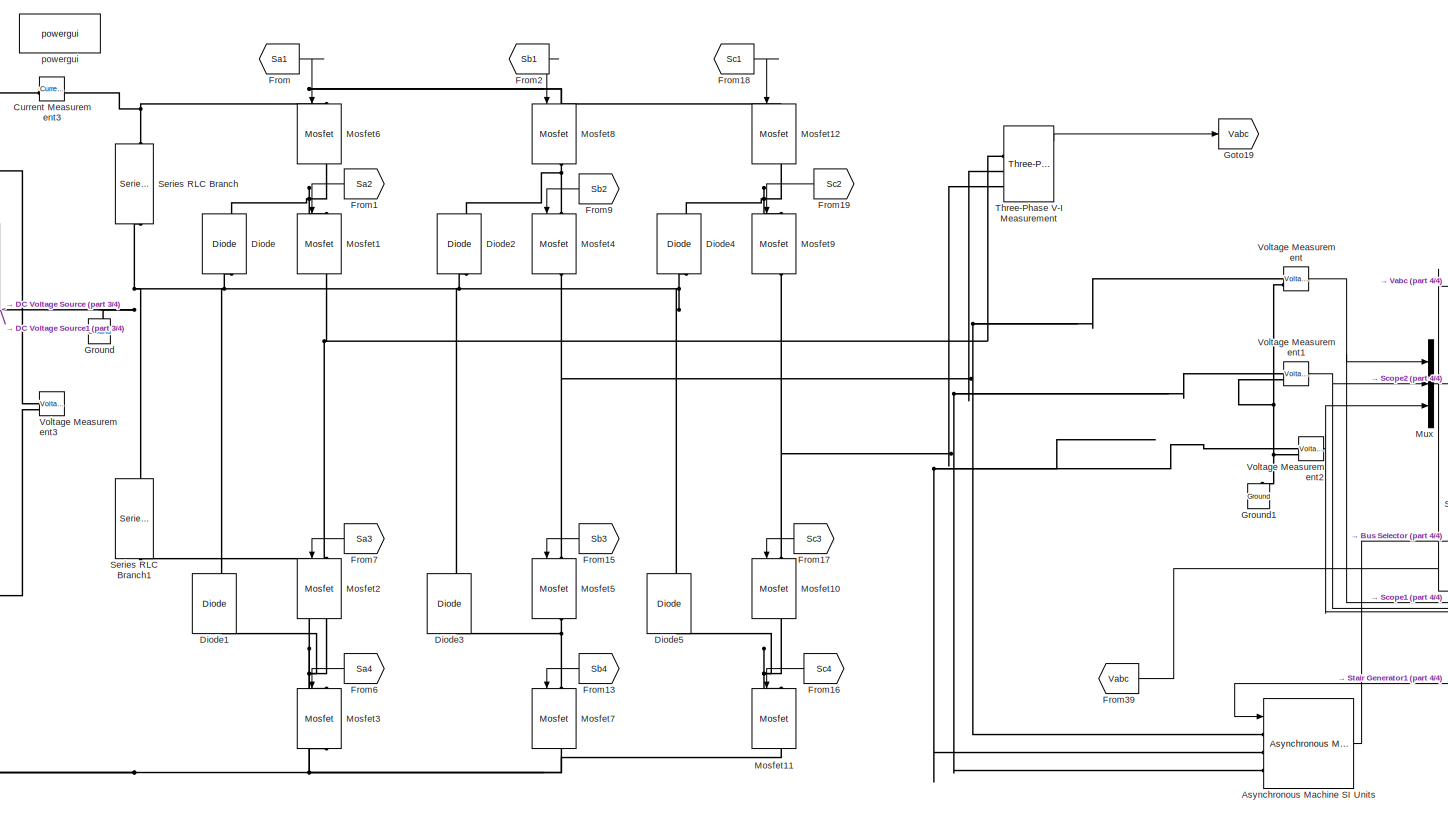
[diagram: root canvas - part 1/4, center side, full height]
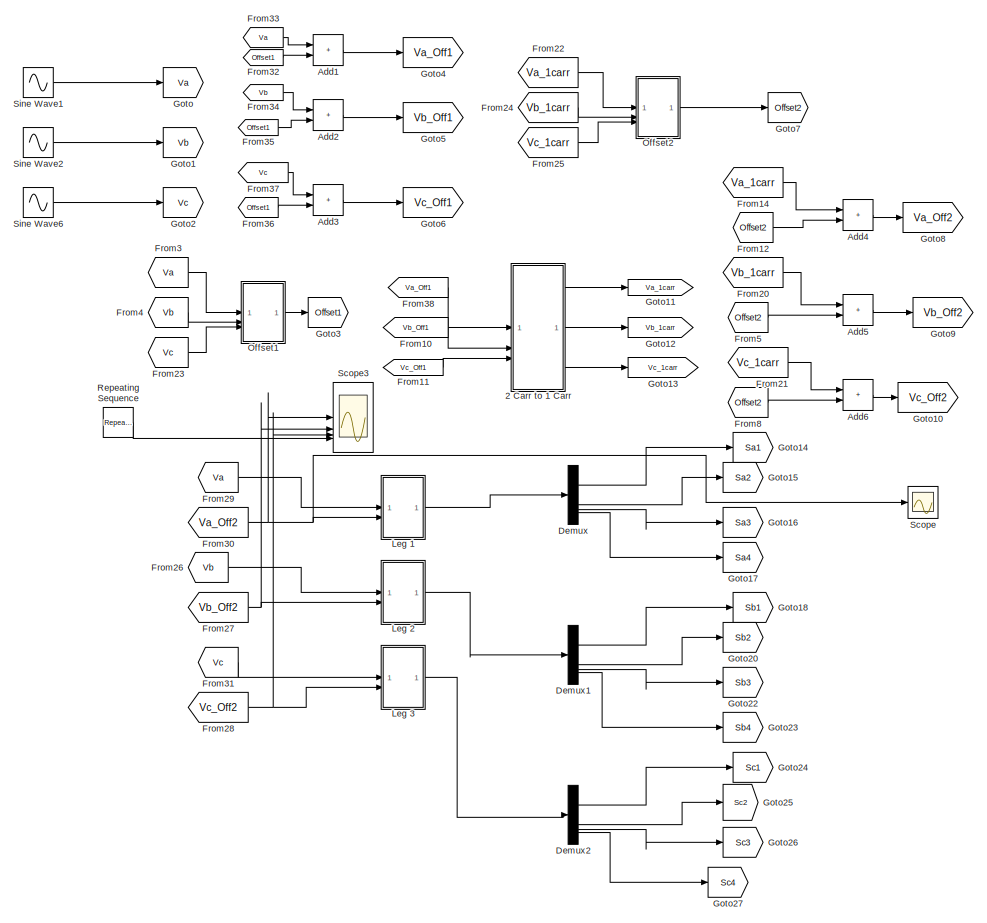
[diagram: root canvas - part 2/4, left side, full height]
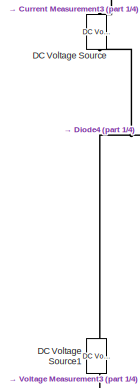
[diagram: root canvas - part 3/4, central region]
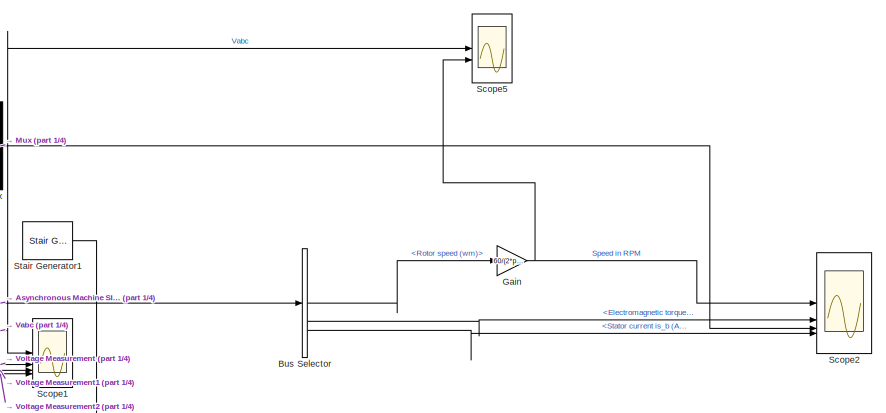
[diagram: root canvas - part 4/4, middle right region]
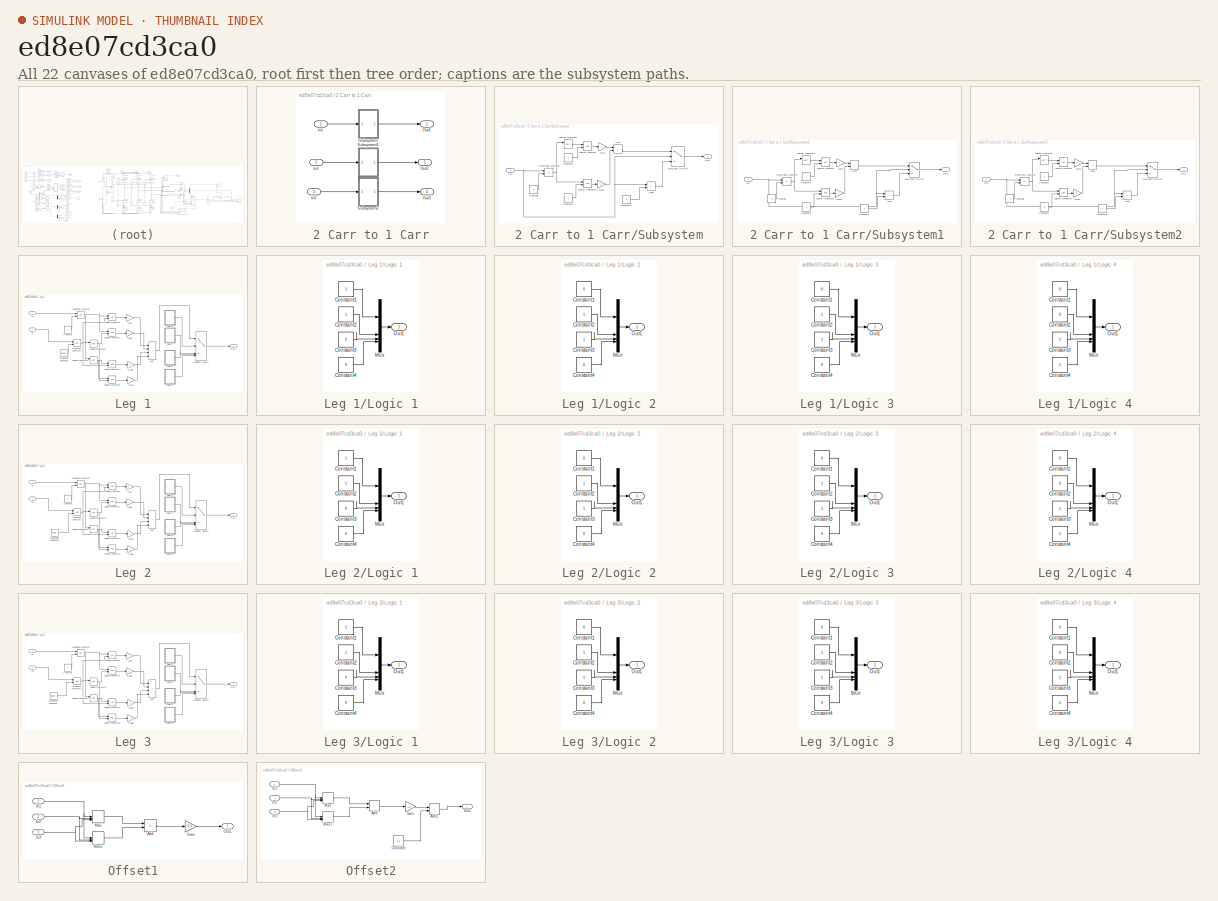
[diagram: thumbnail index - all 22 canvases of the model, root first then tree order]
MODEL slx_ed8e07cd3ca0
KIND model
CONFIG AbsTol = auto
CONFIG EnableMultiTasking = off
CONFIG FixedStep = auto
CONFIG MaxStep = 1e-5
CONFIG MinStep = auto
CONFIG RelTol = 1e-3
CONFIG SampleTimeConstraint = Unconstrained
CONFIG SolverName = VariableStepAuto
CONFIG StartTime = 0.0
CONFIG StopTime = 2
BLOCK [SubSystem] 2 Carr to 1 Carr
BLOCK [Inport] 2 Carr to 1 Carr/In1
BLOCK [Inport] 2 Carr to 1 Carr/In2
  Port = 2
BLOCK [Inport] 2 Carr to 1 Carr/In3
  Port = 3
BLOCK [Outport] 2 Carr to 1 Carr/Out1
BLOCK [Outport] 2 Carr to 1 Carr/Out2
  Port = 2
BLOCK [Outport] 2 Carr to 1 Carr/Out3
  Port = 3
BLOCK [SubSystem] 2 Carr to 1 Carr/Subsystem
BLOCK [Sum] 2 Carr to 1 Carr/Subsystem/Add4
  IconShape = rectangular
BLOCK [Sum] 2 Carr to 1 Carr/Subsystem/Add5
  IconShape = rectangular
BLOCK [Constant] 2 Carr to 1 Carr/Subsystem/Constant
  Value = 0
BLOCK [Constant] 2 Carr to 1 Carr/Subsystem/Constant1
BLOCK [Constant] 2 Carr to 1 Carr/Subsystem/Constant2
BLOCK [Constant] 2 Carr to 1 Carr/Subsystem/Constant3
BLOCK [Gain] 2 Carr to 1 Carr/Subsystem/Gain
BLOCK [Gain] 2 Carr to 1 Carr/Subsystem/Gain1
  Gain = 2
BLOCK [Inport] 2 Carr to 1 Carr/Subsystem/In1
BLOCK [Logic] 2 Carr to 1 Carr/Subsystem/Logical Operator
  AllPortsSameDT = off
  OutDataTypeStr = boolean
BLOCK [Logic] 2 Carr to 1 Carr/Subsystem/Logical Operator1
  AllPortsSameDT = off
  Operator = NOT
  OutDataTypeStr = boolean
BLOCK [Logic] 2 Carr to 1 Carr/Subsystem/Logical Operator2
  AllPortsSameDT = off
  OutDataTypeStr = boolean
BLOCK [MultiPortSwitch] 2 Carr to 1 Carr/Subsystem/Multiport Switch
  InputSameDT = off
  Inputs = 2
  SaturateOnIntegerOverflow = off
BLOCK [Outport] 2 Carr to 1 Carr/Subsystem/Out1
BLOCK [RelationalOperator] 2 Carr to 1 Carr/Subsystem/Relational Operator
  InputSameDT = off
  Operator = <=
  OutDataTypeStr = boolean
  RndMeth = Simplest
BLOCK [SubSystem] 2 Carr to 1 Carr/Subsystem1
BLOCK [Sum] 2 Carr to 1 Carr/Subsystem1/Add4
  IconShape = rectangular
BLOCK [Sum] 2 Carr to 1 Carr/Subsystem1/Add5
  IconShape = rectangular
BLOCK [Constant] 2 Carr to 1 Carr/Subsystem1/Constant
  Value = 0
BLOCK [Constant] 2 Carr to 1 Carr/Subsystem1/Constant1
BLOCK [Constant] 2 Carr to 1 Carr/Subsystem1/Constant2
BLOCK [Constant] 2 Carr to 1 Carr/Subsystem1/Constant3
BLOCK [Gain] 2 Carr to 1 Carr/Subsystem1/Gain
BLOCK [Gain] 2 Carr to 1 Carr/Subsystem1/Gain1
  Gain = 2
BLOCK [Inport] 2 Carr to 1 Carr/Subsystem1/In1
BLOCK [Logic] 2 Carr to 1 Carr/Subsystem1/Logical Operator
  AllPortsSameDT = off
  OutDataTypeStr = boolean
BLOCK [Logic] 2 Carr to 1 Carr/Subsystem1/Logical Operator1
  AllPortsSameDT = off
  Operator = NOT
  OutDataTypeStr = boolean
BLOCK [Logic] 2 Carr to 1 Carr/Subsystem1/Logical Operator2
  AllPortsSameDT = off
  OutDataTypeStr = boolean
BLOCK [MultiPortSwitch] 2 Carr to 1 Carr/Subsystem1/Multiport Switch
  InputSameDT = off
  Inputs = 2
  SaturateOnIntegerOverflow = off
BLOCK [Outport] 2 Carr to 1 Carr/Subsystem1/Out1
BLOCK [RelationalOperator] 2 Carr to 1 Carr/Subsystem1/Relational Operator
  InputSameDT = off
  Operator = <=
  OutDataTypeStr = boolean
  RndMeth = Simplest
BLOCK [SubSystem] 2 Carr to 1 Carr/Subsystem2
BLOCK [Sum] 2 Carr to 1 Carr/Subsystem2/Add4
  IconShape = rectangular
BLOCK [Sum] 2 Carr to 1 Carr/Subsystem2/Add5
  IconShape = rectangular
BLOCK [Constant] 2 Carr to 1 Carr/Subsystem2/Constant
  Value = 0
BLOCK [Constant] 2 Carr to 1 Carr/Subsystem2/Constant1
BLOCK [Constant] 2 Carr to 1 Carr/Subsystem2/Constant2
BLOCK [Constant] 2 Carr to 1 Carr/Subsystem2/Constant3
BLOCK [Gain] 2 Carr to 1 Carr/Subsystem2/Gain
BLOCK [Gain] 2 Carr to 1 Carr/Subsystem2/Gain1
  Gain = 2
BLOCK [Inport] 2 Carr to 1 Carr/Subsystem2/In1
BLOCK [Logic] 2 Carr to 1 Carr/Subsystem2/Logical Operator
  AllPortsSameDT = off
  OutDataTypeStr = boolean
BLOCK [Logic] 2 Carr to 1 Carr/Subsystem2/Logical Operator1
  AllPortsSameDT = off
  Operator = NOT
  OutDataTypeStr = boolean
BLOCK [Logic] 2 Carr to 1 Carr/Subsystem2/Logical Operator2
  AllPortsSameDT = off
  OutDataTypeStr = boolean
BLOCK [MultiPortSwitch] 2 Carr to 1 Carr/Subsystem2/Multiport Switch
  InputSameDT = off
  Inputs = 2
  SaturateOnIntegerOverflow = off
BLOCK [Outport] 2 Carr to 1 Carr/Subsystem2/Out1
BLOCK [RelationalOperator] 2 Carr to 1 Carr/Subsystem2/Relational Operator
  InputSameDT = off
  Operator = <=
  OutDataTypeStr = boolean
  RndMeth = Simplest
BLOCK [Sum] Add1
  IconShape = rectangular
BLOCK [Sum] Add2
  IconShape = rectangular
BLOCK [Sum] Add3
  IconShape = rectangular
BLOCK [Sum] Add4
  IconShape = rectangular
BLOCK [Sum] Add5
  IconShape = rectangular
BLOCK [Sum] Add6
  IconShape = rectangular
BLOCK [Reference] Asynchronous Machine SI Units  REF=spsAsynchronousMachineSIUnitsLib/Asynchronous Machine
SI Units
  SourceBlock = spsAsynchronousMachineSIUnitsLib/Asynchronous Machine\nSI Units
  SourceType = Asynchronous Machine
BLOCK [BusSelector] Bus Selector
  OutputSignals = Mechanical.Rotor speed (wm),Mechanical.Electromagnetic torque Te (N*m),Stator measurements.Stator current is_b (A),Stator measurements.Stator flux phis_d (V s),Stator measurements.Stator flux phis_q (V s),Stator measurements.Stator current is_a (A),Stator measurements.Stator current is_b (A),Stator measurements.Stator current is_c (A)
BLOCK [Reference] Current Measurement3  REF=spsCurrentMeasurementLib/Current Measurement
  SourceBlock = spsCurrentMeasurementLib/Current Measurement
  SourceType = Current Measurement
  UserDataPersistent = on
BLOCK [Reference] DC Voltage Source  REF=spsDCVoltageSourceLib/DC Voltage Source
  SourceBlock = spsDCVoltageSourceLib/DC Voltage Source
  SourceType = DC Voltage Source
BLOCK [Reference] DC Voltage Source1  REF=spsDCVoltageSourceLib/DC Voltage Source
  SourceBlock = spsDCVoltageSourceLib/DC Voltage Source
  SourceType = DC Voltage Source
BLOCK [Demux] Demux
BLOCK [Demux] Demux1
BLOCK [Demux] Demux2
BLOCK [Reference] Diode  REF=spsDiodeLib/Diode
  NameLocation = right
  SourceBlock = spsDiodeLib/Diode
  SourceType = Diode
BLOCK [Reference] Diode1  REF=spsDiodeLib/Diode
  NameLocation = right
  SourceBlock = spsDiodeLib/Diode
  SourceType = Diode
BLOCK [Reference] Diode2  REF=spsDiodeLib/Diode
  NameLocation = right
  SourceBlock = spsDiodeLib/Diode
  SourceType = Diode
BLOCK [Reference] Diode3  REF=spsDiodeLib/Diode
  NameLocation = right
  SourceBlock = spsDiodeLib/Diode
  SourceType = Diode
BLOCK [Reference] Diode4  REF=spsDiodeLib/Diode
  NameLocation = right
  SourceBlock = spsDiodeLib/Diode
  SourceType = Diode
BLOCK [Reference] Diode5  REF=spsDiodeLib/Diode
  NameLocation = right
  SourceBlock = spsDiodeLib/Diode
  SourceType = Diode
BLOCK [From] From
  GotoTag = Sa1
BLOCK [From] From1
  GotoTag = Sa2
  NameLocation = top
BLOCK [From] From10
  GotoTag = Vb_Off1
BLOCK [From] From11
  GotoTag = Vc_Off1
BLOCK [From] From12
  GotoTag = Offset2
BLOCK [From] From13
  GotoTag = Sb4
  NameLocation = top
BLOCK [From] From14
  GotoTag = Va_1carr
BLOCK [From] From15
  GotoTag = Sb3
  NameLocation = top
BLOCK [From] From16
  GotoTag = Sc4
  NameLocation = top
BLOCK [From] From17
  GotoTag = Sc3
  NameLocation = top
BLOCK [From] From18
  GotoTag = Sc1
BLOCK [From] From19
  GotoTag = Sc2
  NameLocation = top
BLOCK [From] From2
  GotoTag = Sb1
BLOCK [From] From20
  GotoTag = Vb_1carr
BLOCK [From] From21
  GotoTag = Vc_1carr
BLOCK [From] From22
  GotoTag = Va_1carr
BLOCK [From] From23
  GotoTag = Vc
BLOCK [From] From24
  GotoTag = Vb_1carr
BLOCK [From] From25
  GotoTag = Vc_1carr
BLOCK [From] From26
  GotoTag = Vb
BLOCK [From] From27
  GotoTag = Vb_Off2
BLOCK [From] From28
  GotoTag = Vc_Off2
BLOCK [From] From29
  GotoTag = Va
BLOCK [From] From3
  GotoTag = Va
BLOCK [From] From30
  GotoTag = Va_Off2
BLOCK [From] From31
  GotoTag = Vc
BLOCK [From] From32
  GotoTag = Offset1
BLOCK [From] From33
  GotoTag = Va
BLOCK [From] From34
  GotoTag = Vb
BLOCK [From] From35
  GotoTag = Offset1
BLOCK [From] From36
  GotoTag = Offset1
BLOCK [From] From37
  GotoTag = Vc
BLOCK [From] From38
  GotoTag = Va_Off1
BLOCK [From] From39
  GotoTag = Vabc
BLOCK [From] From4
  GotoTag = Vb
BLOCK [From] From5
  GotoTag = Offset2
BLOCK [From] From6
  GotoTag = Sa4
  NameLocation = top
BLOCK [From] From7
  GotoTag = Sa3
  NameLocation = top
BLOCK [From] From8
  GotoTag = Offset2
BLOCK [From] From9
  GotoTag = Sb2
  NameLocation = top
BLOCK [Gain] Gain
  Gain = 60/(2*pi)
BLOCK [Goto] Goto
  GotoTag = Va
BLOCK [Goto] Goto1
  GotoTag = Vb
BLOCK [Goto] Goto10
  GotoTag = Vc_Off2
BLOCK [Goto] Goto11
  GotoTag = Va_1carr
BLOCK [Goto] Goto12
  GotoTag = Vb_1carr
BLOCK [Goto] Goto13
  GotoTag = Vc_1carr
BLOCK [Goto] Goto14
  GotoTag = Sa1
BLOCK [Goto] Goto15
  GotoTag = Sa2
  NameLocation = top
BLOCK [Goto] Goto16
  GotoTag = Sa3
  NameLocation = top
BLOCK [Goto] Goto17
  GotoTag = Sa4
  NameLocation = top
BLOCK [Goto] Goto18
  GotoTag = Sb1
BLOCK [Goto] Goto19
  GotoTag = Vabc
BLOCK [Goto] Goto2
  GotoTag = Vc
BLOCK [Goto] Goto20
  GotoTag = Sb2
  NameLocation = top
BLOCK [Goto] Goto22
  GotoTag = Sb3
  NameLocation = top
BLOCK [Goto] Goto23
  GotoTag = Sb4
  NameLocation = top
BLOCK [Goto] Goto24
  GotoTag = Sc1
BLOCK [Goto] Goto25
  GotoTag = Sc2
  NameLocation = top
BLOCK [Goto] Goto26
  GotoTag = Sc3
  NameLocation = top
BLOCK [Goto] Goto27
  GotoTag = Sc4
  NameLocation = top
BLOCK [Goto] Goto3
  GotoTag = Offset1
BLOCK [Goto] Goto4
  GotoTag = Va_Off1
BLOCK [Goto] Goto5
  GotoTag = Vb_Off1
BLOCK [Goto] Goto6
  GotoTag = Vc_Off1
BLOCK [Goto] Goto7
  GotoTag = Offset2
BLOCK [Goto] Goto8
  GotoTag = Va_Off2
BLOCK [Goto] Goto9
  GotoTag = Vb_Off2
BLOCK [Reference] Ground  REF=spsGroundLib/Ground
  NameLocation = right
  SourceBlock = spsGroundLib/Ground
  SourceType = Ground
BLOCK [Reference] Ground1  REF=spsGroundLib/Ground
  NameLocation = right
  SourceBlock = spsGroundLib/Ground
  SourceType = Ground
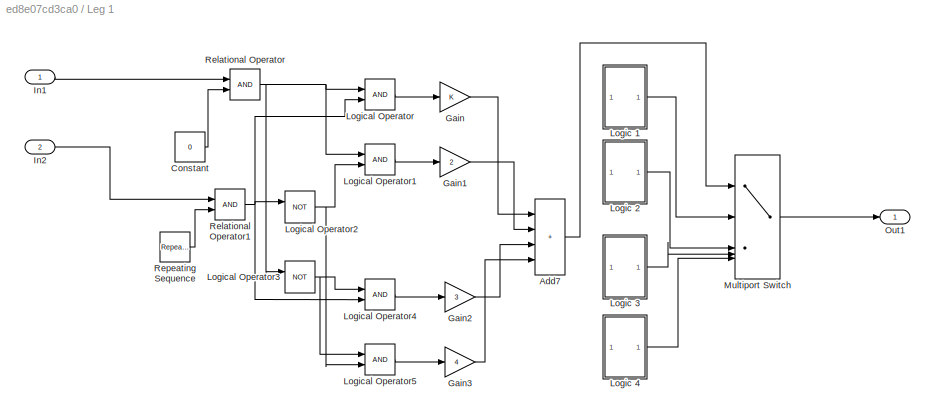
BLOCK [SubSystem] Leg 1
BLOCK [Sum] Leg 1/Add7
  IconShape = rectangular
  Inputs = ++++
BLOCK [Constant] Leg 1/Constant
  Value = 0
BLOCK [Gain] Leg 1/Gain
BLOCK [Gain] Leg 1/Gain1
  Gain = 2
BLOCK [Gain] Leg 1/Gain2
  Gain = 3
BLOCK [Gain] Leg 1/Gain3
  Gain = 4
BLOCK [Inport] Leg 1/In1
BLOCK [Inport] Leg 1/In2
  Port = 2
BLOCK [SubSystem] Leg 1/Logic 1
BLOCK [Constant] Leg 1/Logic 1/Constant1
BLOCK [Constant] Leg 1/Logic 1/Constant2
BLOCK [Constant] Leg 1/Logic 1/Constant3
  Value = 0
BLOCK [Constant] Leg 1/Logic 1/Constant4
  Value = 0
BLOCK [Mux] Leg 1/Logic 1/Mux
  DisplayOption = bar
BLOCK [Outport] Leg 1/Logic 1/Out1
BLOCK [SubSystem] Leg 1/Logic 2
BLOCK [Constant] Leg 1/Logic 2/Constant1
  Value = 0
BLOCK [Constant] Leg 1/Logic 2/Constant2
BLOCK [Constant] Leg 1/Logic 2/Constant3
BLOCK [Constant] Leg 1/Logic 2/Constant4
  Value = 0
BLOCK [Mux] Leg 1/Logic 2/Mux
  DisplayOption = bar
BLOCK [Outport] Leg 1/Logic 2/Out1
BLOCK [SubSystem] Leg 1/Logic 3
BLOCK [Constant] Leg 1/Logic 3/Constant1
  Value = 0
BLOCK [Constant] Leg 1/Logic 3/Constant2
BLOCK [Constant] Leg 1/Logic 3/Constant3
BLOCK [Constant] Leg 1/Logic 3/Constant4
  Value = 0
BLOCK [Mux] Leg 1/Logic 3/Mux
  DisplayOption = bar
BLOCK [Outport] Leg 1/Logic 3/Out1
BLOCK [SubSystem] Leg 1/Logic 4
BLOCK [Constant] Leg 1/Logic 4/Constant1
  Value = 0
BLOCK [Constant] Leg 1/Logic 4/Constant2
  Value = 0
BLOCK [Constant] Leg 1/Logic 4/Constant3
BLOCK [Constant] Leg 1/Logic 4/Constant4
BLOCK [Mux] Leg 1/Logic 4/Mux
  DisplayOption = bar
BLOCK [Outport] Leg 1/Logic 4/Out1
BLOCK [Logic] Leg 1/Logical Operator
  AllPortsSameDT = off
  OutDataTypeStr = boolean
BLOCK [Logic] Leg 1/Logical Operator1
  AllPortsSameDT = off
  OutDataTypeStr = boolean
BLOCK [Logic] Leg 1/Logical Operator2
  AllPortsSameDT = off
  Operator = NOT
  OutDataTypeStr = boolean
BLOCK [Logic] Leg 1/Logical Operator3
  AllPortsSameDT = off
  Operator = NOT
  OutDataTypeStr = boolean
BLOCK [Logic] Leg 1/Logical Operator4
  AllPortsSameDT = off
  OutDataTypeStr = boolean
BLOCK [Logic] Leg 1/Logical Operator5
  AllPortsSameDT = off
  OutDataTypeStr = boolean
BLOCK [MultiPortSwitch] Leg 1/Multiport Switch
  InputSameDT = off
  Inputs = 4
  SaturateOnIntegerOverflow = off
BLOCK [Outport] Leg 1/Out1
BLOCK [RelationalOperator] Leg 1/Relational Operator
  InputSameDT = off
  OutDataTypeStr = boolean
  RndMeth = Simplest
BLOCK [RelationalOperator] Leg 1/Relational Operator1
  InputSameDT = off
  OutDataTypeStr = boolean
  RndMeth = Simplest
BLOCK [Reference] Leg 1/Repeating Sequence  REF=simulink/Sources/Repeating
Sequence
  SourceBlock = simulink/Sources/Repeating\nSequence
  SourceType = Repeating table
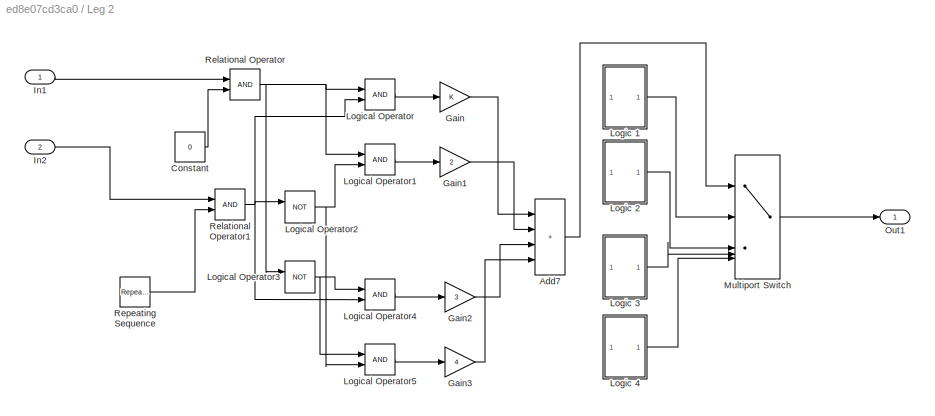
BLOCK [SubSystem] Leg 2
BLOCK [Sum] Leg 2/Add7
  IconShape = rectangular
  Inputs = ++++
BLOCK [Constant] Leg 2/Constant
  Value = 0
BLOCK [Gain] Leg 2/Gain
BLOCK [Gain] Leg 2/Gain1
  Gain = 2
BLOCK [Gain] Leg 2/Gain2
  Gain = 3
BLOCK [Gain] Leg 2/Gain3
  Gain = 4
BLOCK [Inport] Leg 2/In1
BLOCK [Inport] Leg 2/In2
  Port = 2
BLOCK [SubSystem] Leg 2/Logic 1
BLOCK [Constant] Leg 2/Logic 1/Constant1
BLOCK [Constant] Leg 2/Logic 1/Constant2
BLOCK [Constant] Leg 2/Logic 1/Constant3
  Value = 0
BLOCK [Constant] Leg 2/Logic 1/Constant4
  Value = 0
BLOCK [Mux] Leg 2/Logic 1/Mux
  DisplayOption = bar
BLOCK [Outport] Leg 2/Logic 1/Out1
BLOCK [SubSystem] Leg 2/Logic 2
BLOCK [Constant] Leg 2/Logic 2/Constant1
  Value = 0
BLOCK [Constant] Leg 2/Logic 2/Constant2
BLOCK [Constant] Leg 2/Logic 2/Constant3
BLOCK [Constant] Leg 2/Logic 2/Constant4
  Value = 0
BLOCK [Mux] Leg 2/Logic 2/Mux
  DisplayOption = bar
BLOCK [Outport] Leg 2/Logic 2/Out1
BLOCK [SubSystem] Leg 2/Logic 3
BLOCK [Constant] Leg 2/Logic 3/Constant1
  Value = 0
BLOCK [Constant] Leg 2/Logic 3/Constant2
BLOCK [Constant] Leg 2/Logic 3/Constant3
BLOCK [Constant] Leg 2/Logic 3/Constant4
  Value = 0
BLOCK [Mux] Leg 2/Logic 3/Mux
  DisplayOption = bar
BLOCK [Outport] Leg 2/Logic 3/Out1
BLOCK [SubSystem] Leg 2/Logic 4
BLOCK [Constant] Leg 2/Logic 4/Constant1
  Value = 0
BLOCK [Constant] Leg 2/Logic 4/Constant2
  Value = 0
BLOCK [Constant] Leg 2/Logic 4/Constant3
BLOCK [Constant] Leg 2/Logic 4/Constant4
BLOCK [Mux] Leg 2/Logic 4/Mux
  DisplayOption = bar
BLOCK [Outport] Leg 2/Logic 4/Out1
BLOCK [Logic] Leg 2/Logical Operator
  AllPortsSameDT = off
  OutDataTypeStr = boolean
BLOCK [Logic] Leg 2/Logical Operator1
  AllPortsSameDT = off
  OutDataTypeStr = boolean
BLOCK [Logic] Leg 2/Logical Operator2
  AllPortsSameDT = off
  Operator = NOT
  OutDataTypeStr = boolean
BLOCK [Logic] Leg 2/Logical Operator3
  AllPortsSameDT = off
  Operator = NOT
  OutDataTypeStr = boolean
BLOCK [Logic] Leg 2/Logical Operator4
  AllPortsSameDT = off
  OutDataTypeStr = boolean
BLOCK [Logic] Leg 2/Logical Operator5
  AllPortsSameDT = off
  OutDataTypeStr = boolean
BLOCK [MultiPortSwitch] Leg 2/Multiport Switch
  InputSameDT = off
  Inputs = 4
  SaturateOnIntegerOverflow = off
BLOCK [Outport] Leg 2/Out1
BLOCK [RelationalOperator] Leg 2/Relational Operator
  InputSameDT = off
  OutDataTypeStr = boolean
  RndMeth = Simplest
BLOCK [RelationalOperator] Leg 2/Relational Operator1
  InputSameDT = off
  OutDataTypeStr = boolean
  RndMeth = Simplest
BLOCK [Reference] Leg 2/Repeating Sequence  REF=simulink/Sources/Repeating
Sequence
  SourceBlock = simulink/Sources/Repeating\nSequence
  SourceType = Repeating table
BLOCK [SubSystem] Leg 3
BLOCK [Sum] Leg 3/Add7
  IconShape = rectangular
  Inputs = ++++
BLOCK [Constant] Leg 3/Constant
  Value = 0
BLOCK [Gain] Leg 3/Gain
BLOCK [Gain] Leg 3/Gain1
  Gain = 2
BLOCK [Gain] Leg 3/Gain2
  Gain = 3
BLOCK [Gain] Leg 3/Gain3
  Gain = 4
BLOCK [Inport] Leg 3/In1
BLOCK [Inport] Leg 3/In2
  Port = 2
BLOCK [SubSystem] Leg 3/Logic 1
BLOCK [Constant] Leg 3/Logic 1/Constant1
BLOCK [Constant] Leg 3/Logic 1/Constant2
BLOCK [Constant] Leg 3/Logic 1/Constant3
  Value = 0
BLOCK [Constant] Leg 3/Logic 1/Constant4
  Value = 0
BLOCK [Mux] Leg 3/Logic 1/Mux
  DisplayOption = bar
BLOCK [Outport] Leg 3/Logic 1/Out1
BLOCK [SubSystem] Leg 3/Logic 2
BLOCK [Constant] Leg 3/Logic 2/Constant1
  Value = 0
BLOCK [Constant] Leg 3/Logic 2/Constant2
BLOCK [Constant] Leg 3/Logic 2/Constant3
BLOCK [Constant] Leg 3/Logic 2/Constant4
  Value = 0
BLOCK [Mux] Leg 3/Logic 2/Mux
  DisplayOption = bar
BLOCK [Outport] Leg 3/Logic 2/Out1
BLOCK [SubSystem] Leg 3/Logic 3
BLOCK [Constant] Leg 3/Logic 3/Constant1
  Value = 0
BLOCK [Constant] Leg 3/Logic 3/Constant2
BLOCK [Constant] Leg 3/Logic 3/Constant3
BLOCK [Constant] Leg 3/Logic 3/Constant4
  Value = 0
BLOCK [Mux] Leg 3/Logic 3/Mux
  DisplayOption = bar
BLOCK [Outport] Leg 3/Logic 3/Out1
BLOCK [SubSystem] Leg 3/Logic 4
BLOCK [Constant] Leg 3/Logic 4/Constant1
  Value = 0
BLOCK [Constant] Leg 3/Logic 4/Constant2
  Value = 0
BLOCK [Constant] Leg 3/Logic 4/Constant3
BLOCK [Constant] Leg 3/Logic 4/Constant4
BLOCK [Mux] Leg 3/Logic 4/Mux
  DisplayOption = bar
BLOCK [Outport] Leg 3/Logic 4/Out1
BLOCK [Logic] Leg 3/Logical Operator
  AllPortsSameDT = off
  OutDataTypeStr = boolean
BLOCK [Logic] Leg 3/Logical Operator1
  AllPortsSameDT = off
  OutDataTypeStr = boolean
BLOCK [Logic] Leg 3/Logical Operator2
  AllPortsSameDT = off
  Operator = NOT
  OutDataTypeStr = boolean
BLOCK [Logic] Leg 3/Logical Operator3
  AllPortsSameDT = off
  Operator = NOT
  OutDataTypeStr = boolean
BLOCK [Logic] Leg 3/Logical Operator4
  AllPortsSameDT = off
  OutDataTypeStr = boolean
BLOCK [Logic] Leg 3/Logical Operator5
  AllPortsSameDT = off
  OutDataTypeStr = boolean
BLOCK [MultiPortSwitch] Leg 3/Multiport Switch
  InputSameDT = off
  Inputs = 4
  SaturateOnIntegerOverflow = off
BLOCK [Outport] Leg 3/Out1
BLOCK [RelationalOperator] Leg 3/Relational Operator
  InputSameDT = off
  OutDataTypeStr = boolean
  RndMeth = Simplest
BLOCK [RelationalOperator] Leg 3/Relational Operator1
  InputSameDT = off
  OutDataTypeStr = boolean
  RndMeth = Simplest
BLOCK [Reference] Leg 3/Repeating Sequence  REF=simulink/Sources/Repeating
Sequence
  SourceBlock = simulink/Sources/Repeating\nSequence
  SourceType = Repeating table
BLOCK [Reference] Mosfet1  REF=spsMosfetLib/Mosfet
  NameLocation = left
  SourceBlock = spsMosfetLib/Mosfet
  SourceType = Mosfet
BLOCK [Reference] Mosfet10  REF=spsMosfetLib/Mosfet
  NameLocation = left
  SourceBlock = spsMosfetLib/Mosfet
  SourceType = Mosfet
BLOCK [Reference] Mosfet11  REF=spsMosfetLib/Mosfet
  NameLocation = left
  SourceBlock = spsMosfetLib/Mosfet
  SourceType = Mosfet
BLOCK [Reference] Mosfet12  REF=spsMosfetLib/Mosfet
  NameLocation = left
  SourceBlock = spsMosfetLib/Mosfet
  SourceType = Mosfet
BLOCK [Reference] Mosfet2  REF=spsMosfetLib/Mosfet
  NameLocation = left
  SourceBlock = spsMosfetLib/Mosfet
  SourceType = Mosfet
BLOCK [Reference] Mosfet3  REF=spsMosfetLib/Mosfet
  NameLocation = left
  SourceBlock = spsMosfetLib/Mosfet
  SourceType = Mosfet
BLOCK [Reference] Mosfet4  REF=spsMosfetLib/Mosfet
  NameLocation = left
  SourceBlock = spsMosfetLib/Mosfet
  SourceType = Mosfet
BLOCK [Reference] Mosfet5  REF=spsMosfetLib/Mosfet
  NameLocation = left
  SourceBlock = spsMosfetLib/Mosfet
  SourceType = Mosfet
BLOCK [Reference] Mosfet6  REF=spsMosfetLib/Mosfet
  NameLocation = left
  SourceBlock = spsMosfetLib/Mosfet
  SourceType = Mosfet
BLOCK [Reference] Mosfet7  REF=spsMosfetLib/Mosfet
  NameLocation = left
  SourceBlock = spsMosfetLib/Mosfet
  SourceType = Mosfet
BLOCK [Reference] Mosfet8  REF=spsMosfetLib/Mosfet
  NameLocation = left
  SourceBlock = spsMosfetLib/Mosfet
  SourceType = Mosfet
BLOCK [Reference] Mosfet9  REF=spsMosfetLib/Mosfet
  NameLocation = left
  SourceBlock = spsMosfetLib/Mosfet
  SourceType = Mosfet
BLOCK [Mux] Mux
  DisplayOption = bar
  Inputs = 3
BLOCK [SubSystem] Offset1
BLOCK [Sum] Offset1/Add
  IconShape = rectangular
BLOCK [Gain] Offset1/Gain
  Gain = -0.5
BLOCK [Inport] Offset1/In1
BLOCK [Inport] Offset1/In2
  Port = 2
BLOCK [Inport] Offset1/In3
  Port = 3
BLOCK [MinMax] Offset1/Max
  Function = max
  Inputs = 3
BLOCK [MinMax] Offset1/Max1
  Inputs = 3
BLOCK [Outport] Offset1/Out1
BLOCK [SubSystem] Offset2
BLOCK [Sum] Offset2/Add
  IconShape = rectangular
BLOCK [Sum] Offset2/Add1
  IconShape = rectangular
BLOCK [Constant] Offset2/Constant
  Value = 0.5
BLOCK [Gain] Offset2/Gain
  Gain = -0.5
BLOCK [Inport] Offset2/In1
BLOCK [Inport] Offset2/In2
  Port = 2
BLOCK [Inport] Offset2/In3
  Port = 3
BLOCK [MinMax] Offset2/Max
  Function = max
  Inputs = 3
BLOCK [MinMax] Offset2/Max1
  Inputs = 3
BLOCK [Outport] Offset2/Out1
BLOCK [Reference] Repeating Sequence  REF=simulink/Sources/Repeating
Sequence
  SourceBlock = simulink/Sources/Repeating\nSequence
  SourceType = Repeating table
BLOCK [Scope] Scope
  Floating = off
  NumInputPorts = 1
  ScopeSpecificationString = Simulink.scopes.TimeScopeBlockCfg('CurrentConfiguration', extmgr.ConfigurationSet(extmgr.Configuration('Core','General UI',true),extmgr.Configuration('Core','Source UI',true),extmgr.Configuration('Sources','WiredSimulink',true,'DataLoggingVariableName','ScopeData2'),extmgr.Configuration('Visuals','Time Domain',true,'SerializedDisplays',{struct('MinYLimReal','-0.04127','MaxYLimReal','1.04127','YLab...<+1478ch>
BLOCK [Scope] Scope1
  Floating = off
  NumInputPorts = 4
  ScopeSpecificationString = Simulink.scopes.TimeScopeBlockCfg('CurrentConfiguration', extmgr.ConfigurationSet(extmgr.Configuration('Core','General UI',true,'FigureColor',[1 1 1]),extmgr.Configuration('Core','Source UI',true),extmgr.Configuration('Sources','WiredSimulink',true,'DataLoggingVariableName','ScopeData1'),extmgr.Configuration('Visuals','Time Domain',true,'SerializedDisplays',{struct('MinYLimReal','-951.75072','MaxY...<+4524ch>
BLOCK [Scope] Scope2
  Floating = off
  NumInputPorts = 6
  ScopeSpecificationString = Simulink.scopes.TimeScopeBlockCfg('CurrentConfiguration', extmgr.ConfigurationSet(extmgr.Configuration('Core','General UI',true,'FigureColor',[1 1 1]),extmgr.Configuration('Core','Source UI',true),extmgr.Configuration('Sources','WiredSimulink',true,'DataLoggingVariableName','SpeedTorque'),extmgr.Configuration('Visuals','Time Domain',true,'SerializedDisplays',{struct('MinYLimReal','871.44134','MaxY...<+7518ch>
BLOCK [Scope] Scope3
  Floating = off
  NumInputPorts = 6
  ScopeSpecificationString = Simulink.scopes.TimeScopeBlockCfg('CurrentConfiguration', extmgr.ConfigurationSet(extmgr.Configuration('Core','General UI',true,'FigureColor',[1 1 1]),extmgr.Configuration('Core','Source UI',true),extmgr.Configuration('Sources','WiredSimulink',true,'DataLoggingVariableName','ScopeData3'),extmgr.Configuration('Visuals','Time Domain',true,'SerializedDisplays',{struct('MinYLimReal','-0.04127','MaxYLi...<+5757ch>
BLOCK [Scope] Scope5
  Floating = off
  NumInputPorts = 2
  ScopeSpecificationString = Simulink.scopes.TimeScopeBlockCfg('CurrentConfiguration', extmgr.ConfigurationSet(extmgr.Configuration('Core','General UI',true,'FigureColor',[1 1 1]),extmgr.Configuration('Core','Source UI',true),extmgr.Configuration('Sources','WiredSimulink',true,'DataLoggingVariableName','ScopeData1'),extmgr.Configuration('Visuals','Time Domain',true,'SerializedDisplays',{struct('MinYLimReal','-951.75072','MaxY...<+2877ch>
BLOCK [Reference] Series RLC Branch  REF=spsSeriesRLCBranchLib/Series RLC Branch
  NameLocation = left
  SourceBlock = spsSeriesRLCBranchLib/Series RLC Branch
  SourceType = Series RLC Branch
BLOCK [Reference] Series RLC Branch1  REF=spsSeriesRLCBranchLib/Series RLC Branch
  NameLocation = left
  SourceBlock = spsSeriesRLCBranchLib/Series RLC Branch
  SourceType = Series RLC Branch
BLOCK [Sin] Sine Wave1
  Frequency = 2*pi*50
  SampleTime = 0
BLOCK [Sin] Sine Wave2
  Frequency = 2*pi*50
  Phase = 2*pi/3
  SampleTime = 0
BLOCK [Sin] Sine Wave6
  Frequency = 2*pi*50
  Phase = 4*pi/3
  SampleTime = 0
BLOCK [Reference] Stair Generator1  REF=spsStairGeneratorLib/Stair
Generator
  SourceBlock = spsStairGeneratorLib/Stair\nGenerator
  SourceType = Stair Generator
BLOCK [Reference] Three-Phase V-I Measurement  REF=spsThreePhaseVIMeasurementLib/Three-Phase
V-I Measurement
  SourceBlock = spsThreePhaseVIMeasurementLib/Three-Phase\nV-I Measurement
  SourceType = Three-Phase VI Measurement
BLOCK [Reference] Voltage Measurement  REF=spsVoltageMeasurementLib/Voltage Measurement
  SourceBlock = spsVoltageMeasurementLib/Voltage Measurement
  SourceType = Voltage Measurement
  UserDataPersistent = on
BLOCK [Reference] Voltage Measurement1  REF=spsVoltageMeasurementLib/Voltage Measurement
  SourceBlock = spsVoltageMeasurementLib/Voltage Measurement
  SourceType = Voltage Measurement
  UserDataPersistent = on
BLOCK [Reference] Voltage Measurement2  REF=spsVoltageMeasurementLib/Voltage Measurement
  SourceBlock = spsVoltageMeasurementLib/Voltage Measurement
  SourceType = Voltage Measurement
  UserDataPersistent = on
BLOCK [Reference] Voltage Measurement3  REF=spsVoltageMeasurementLib/Voltage Measurement
  SourceBlock = spsVoltageMeasurementLib/Voltage Measurement
  SourceType = Voltage Measurement
  UserDataPersistent = on
BLOCK [Reference] powergui  REF=spspowerguiLib/powergui
  Priority = 1
  SourceBlock = spspowerguiLib/powergui
  SourceType = PSB option menu block
LINE 2 Carr to 1 Carr/In1:1 -> 2 Carr to 1 Carr/Subsystem:1
LINE 2 Carr to 1 Carr/In2:1 -> 2 Carr to 1 Carr/Subsystem1:1
LINE 2 Carr to 1 Carr/In3:1 -> 2 Carr to 1 Carr/Subsystem2:1
LINE 2 Carr to 1 Carr/Subsystem/Add4:1 -> 2 Carr to 1 Carr/Subsystem/Multiport Switch:1
LINE 2 Carr to 1 Carr/Subsystem/Add5:1 -> 2 Carr to 1 Carr/Subsystem/Multiport Switch:3
LINE 2 Carr to 1 Carr/Subsystem/Constant1:1 -> 2 Carr to 1 Carr/Subsystem/Logical Operator:2
LINE 2 Carr to 1 Carr/Subsystem/Constant2:1 -> 2 Carr to 1 Carr/Subsystem/Logical Operator2:2
LINE 2 Carr to 1 Carr/Subsystem/Constant3:1 -> 2 Carr to 1 Carr/Subsystem/Add5:2
LINE 2 Carr to 1 Carr/Subsystem/Constant:1 -> 2 Carr to 1 Carr/Subsystem/Relational Operator:2
LINE 2 Carr to 1 Carr/Subsystem/Gain1:1 -> 2 Carr to 1 Carr/Subsystem/Add4:2
LINE 2 Carr to 1 Carr/Subsystem/Gain:1 -> 2 Carr to 1 Carr/Subsystem/Add4:1
NET 2 Carr to 1 Carr/Subsystem/In1:1 -> 2 Carr to 1 Carr/Subsystem/Add5:1, 2 Carr to 1 Carr/Subsystem/Multiport Switch:2, 2 Carr to 1 Carr/Subsystem/Relational Operator:1
LINE 2 Carr to 1 Carr/Subsystem/Logical Operator1:1 -> 2 Carr to 1 Carr/Subsystem/Logical Operator:1
LINE 2 Carr to 1 Carr/Subsystem/Logical Operator2:1 -> 2 Carr to 1 Carr/Subsystem/Gain1:1
LINE 2 Carr to 1 Carr/Subsystem/Logical Operator:1 -> 2 Carr to 1 Carr/Subsystem/Gain:1
LINE 2 Carr to 1 Carr/Subsystem/Multiport Switch:1 -> 2 Carr to 1 Carr/Subsystem/Out1:1
NET 2 Carr to 1 Carr/Subsystem/Relational Operator:1 -> 2 Carr to 1 Carr/Subsystem/Logical Operator1:1, 2 Carr to 1 Carr/Subsystem/Logical Operator2:1
LINE 2 Carr to 1 Carr/Subsystem1/Add4:1 -> 2 Carr to 1 Carr/Subsystem1/Multiport Switch:1
LINE 2 Carr to 1 Carr/Subsystem1/Add5:1 -> 2 Carr to 1 Carr/Subsystem1/Multiport Switch:3
LINE 2 Carr to 1 Carr/Subsystem1/Constant1:1 -> 2 Carr to 1 Carr/Subsystem1/Logical Operator:2
LINE 2 Carr to 1 Carr/Subsystem1/Constant2:1 -> 2 Carr to 1 Carr/Subsystem1/Logical Operator2:2
LINE 2 Carr to 1 Carr/Subsystem1/Constant3:1 -> 2 Carr to 1 Carr/Subsystem1/Add5:2
LINE 2 Carr to 1 Carr/Subsystem1/Constant:1 -> 2 Carr to 1 Carr/Subsystem1/Relational Operator:2
LINE 2 Carr to 1 Carr/Subsystem1/Gain1:1 -> 2 Carr to 1 Carr/Subsystem1/Add4:2
LINE 2 Carr to 1 Carr/Subsystem1/Gain:1 -> 2 Carr to 1 Carr/Subsystem1/Add4:1
NET 2 Carr to 1 Carr/Subsystem1/In1:1 -> 2 Carr to 1 Carr/Subsystem1/Add5:1, 2 Carr to 1 Carr/Subsystem1/Multiport Switch:2, 2 Carr to 1 Carr/Subsystem1/Relational Operator:1
LINE 2 Carr to 1 Carr/Subsystem1/Logical Operator1:1 -> 2 Carr to 1 Carr/Subsystem1/Logical Operator:1
LINE 2 Carr to 1 Carr/Subsystem1/Logical Operator2:1 -> 2 Carr to 1 Carr/Subsystem1/Gain1:1
LINE 2 Carr to 1 Carr/Subsystem1/Logical Operator:1 -> 2 Carr to 1 Carr/Subsystem1/Gain:1
LINE 2 Carr to 1 Carr/Subsystem1/Multiport Switch:1 -> 2 Carr to 1 Carr/Subsystem1/Out1:1
NET 2 Carr to 1 Carr/Subsystem1/Relational Operator:1 -> 2 Carr to 1 Carr/Subsystem1/Logical Operator1:1, 2 Carr to 1 Carr/Subsystem1/Logical Operator2:1
LINE 2 Carr to 1 Carr/Subsystem1:1 -> 2 Carr to 1 Carr/Out2:1
LINE 2 Carr to 1 Carr/Subsystem2/Add4:1 -> 2 Carr to 1 Carr/Subsystem2/Multiport Switch:1
LINE 2 Carr to 1 Carr/Subsystem2/Add5:1 -> 2 Carr to 1 Carr/Subsystem2/Multiport Switch:3
LINE 2 Carr to 1 Carr/Subsystem2/Constant1:1 -> 2 Carr to 1 Carr/Subsystem2/Logical Operator:2
LINE 2 Carr to 1 Carr/Subsystem2/Constant2:1 -> 2 Carr to 1 Carr/Subsystem2/Logical Operator2:2
LINE 2 Carr to 1 Carr/Subsystem2/Constant3:1 -> 2 Carr to 1 Carr/Subsystem2/Add5:2
LINE 2 Carr to 1 Carr/Subsystem2/Constant:1 -> 2 Carr to 1 Carr/Subsystem2/Relational Operator:2
LINE 2 Carr to 1 Carr/Subsystem2/Gain1:1 -> 2 Carr to 1 Carr/Subsystem2/Add4:2
LINE 2 Carr to 1 Carr/Subsystem2/Gain:1 -> 2 Carr to 1 Carr/Subsystem2/Add4:1
NET 2 Carr to 1 Carr/Subsystem2/In1:1 -> 2 Carr to 1 Carr/Subsystem2/Add5:1, 2 Carr to 1 Carr/Subsystem2/Multiport Switch:2, 2 Carr to 1 Carr/Subsystem2/Relational Operator:1
LINE 2 Carr to 1 Carr/Subsystem2/Logical Operator1:1 -> 2 Carr to 1 Carr/Subsystem2/Logical Operator:1
LINE 2 Carr to 1 Carr/Subsystem2/Logical Operator2:1 -> 2 Carr to 1 Carr/Subsystem2/Gain1:1
LINE 2 Carr to 1 Carr/Subsystem2/Logical Operator:1 -> 2 Carr to 1 Carr/Subsystem2/Gain:1
LINE 2 Carr to 1 Carr/Subsystem2/Multiport Switch:1 -> 2 Carr to 1 Carr/Subsystem2/Out1:1
NET 2 Carr to 1 Carr/Subsystem2/Relational Operator:1 -> 2 Carr to 1 Carr/Subsystem2/Logical Operator1:1, 2 Carr to 1 Carr/Subsystem2/Logical Operator2:1
LINE 2 Carr to 1 Carr/Subsystem2:1 -> 2 Carr to 1 Carr/Out3:1
LINE 2 Carr to 1 Carr/Subsystem:1 -> 2 Carr to 1 Carr/Out1:1
LINE 2 Carr to 1 Carr:1 -> Goto11:1
LINE 2 Carr to 1 Carr:2 -> Goto12:1
LINE 2 Carr to 1 Carr:3 -> Goto13:1
LINE Add1:1 -> Goto4:1
LINE Add2:1 -> Goto5:1
LINE Add3:1 -> Goto6:1
LINE Add4:1 -> Goto8:1
LINE Add5:1 -> Goto9:1
LINE Add6:1 -> Goto10:1
LINE Asynchronous Machine SI Units:1 -> Bus Selector:1
LINE Bus Selector:1 -> Gain:1
LINE Bus Selector:2 -> Scope2:2
LINE Bus Selector:3 -> Scope2:4
LINE Demux1:1 -> Goto18:1
LINE Demux1:2 -> Goto20:1
LINE Demux1:3 -> Goto22:1
LINE Demux1:4 -> Goto23:1
LINE Demux2:1 -> Goto24:1
LINE Demux2:2 -> Goto25:1
LINE Demux2:3 -> Goto26:1
LINE Demux2:4 -> Goto27:1
LINE Demux:1 -> Goto14:1
LINE Demux:2 -> Goto15:1
LINE Demux:3 -> Goto16:1
LINE Demux:4 -> Goto17:1
LINE From10:1 -> 2 Carr to 1 Carr:2
LINE From11:1 -> 2 Carr to 1 Carr:3
LINE From12:1 -> Add4:2
LINE From13:1 -> Mosfet7:1
LINE From14:1 -> Add4:1
LINE From15:1 -> Mosfet5:1
LINE From16:1 -> Mosfet11:1
LINE From17:1 -> Mosfet10:1
LINE From18:1 -> Mosfet12:1
LINE From19:1 -> Mosfet9:1
LINE From1:1 -> Mosfet1:1
LINE From20:1 -> Add5:1
LINE From21:1 -> Add6:1
LINE From22:1 -> Offset2:1
LINE From23:1 -> Offset1:3
LINE From24:1 -> Offset2:2
LINE From25:1 -> Offset2:3
LINE From26:1 -> Leg 2:1
NET From27:1 -> Leg 2:2, Scope3:2
NET From28:1 -> Leg 3:2, Scope3:3
LINE From29:1 -> Leg 1:1
LINE From2:1 -> Mosfet8:1
NET From30:1 -> Leg 1:2, Scope3:1, Scope:1
LINE From31:1 -> Leg 3:1
LINE From32:1 -> Add1:2
LINE From33:1 -> Add1:1
LINE From34:1 -> Add2:1
LINE From35:1 -> Add2:2
LINE From36:1 -> Add3:2
LINE From37:1 -> Add3:1
LINE From38:1 -> 2 Carr to 1 Carr:1
NET From39:1 -> Scope1:1, Scope5:1
LINE From3:1 -> Offset1:1
LINE From4:1 -> Offset1:2
LINE From5:1 -> Add5:2
LINE From6:1 -> Mosfet3:1
LINE From7:1 -> Mosfet2:1
LINE From8:1 -> Add6:2
LINE From9:1 -> Mosfet4:1
LINE From:1 -> Mosfet6:1
NET Gain:1 -> Scope2:1, Scope5:2
LINE Leg 1/Add7:1 -> Leg 1/Multiport Switch:1
LINE Leg 1/Constant:1 -> Leg 1/Relational Operator:2
LINE Leg 1/Gain1:1 -> Leg 1/Add7:2
LINE Leg 1/Gain2:1 -> Leg 1/Add7:3
LINE Leg 1/Gain3:1 -> Leg 1/Add7:4
LINE Leg 1/Gain:1 -> Leg 1/Add7:1
LINE Leg 1/In1:1 -> Leg 1/Relational Operator:1
LINE Leg 1/In2:1 -> Leg 1/Relational Operator1:1
LINE Leg 1/Logic 1/Constant1:1 -> Leg 1/Logic 1/Mux:1
LINE Leg 1/Logic 1/Constant2:1 -> Leg 1/Logic 1/Mux:2
LINE Leg 1/Logic 1/Constant3:1 -> Leg 1/Logic 1/Mux:3
LINE Leg 1/Logic 1/Constant4:1 -> Leg 1/Logic 1/Mux:4
LINE Leg 1/Logic 1/Mux:1 -> Leg 1/Logic 1/Out1:1
LINE Leg 1/Logic 1:1 -> Leg 1/Multiport Switch:2
LINE Leg 1/Logic 2/Constant1:1 -> Leg 1/Logic 2/Mux:1
LINE Leg 1/Logic 2/Constant2:1 -> Leg 1/Logic 2/Mux:2
LINE Leg 1/Logic 2/Constant3:1 -> Leg 1/Logic 2/Mux:3
LINE Leg 1/Logic 2/Constant4:1 -> Leg 1/Logic 2/Mux:4
LINE Leg 1/Logic 2/Mux:1 -> Leg 1/Logic 2/Out1:1
LINE Leg 1/Logic 2:1 -> Leg 1/Multiport Switch:3
LINE Leg 1/Logic 3/Constant1:1 -> Leg 1/Logic 3/Mux:1
LINE Leg 1/Logic 3/Constant2:1 -> Leg 1/Logic 3/Mux:2
LINE Leg 1/Logic 3/Constant3:1 -> Leg 1/Logic 3/Mux:3
LINE Leg 1/Logic 3/Constant4:1 -> Leg 1/Logic 3/Mux:4
LINE Leg 1/Logic 3/Mux:1 -> Leg 1/Logic 3/Out1:1
LINE Leg 1/Logic 3:1 -> Leg 1/Multiport Switch:4
LINE Leg 1/Logic 4/Constant1:1 -> Leg 1/Logic 4/Mux:1
LINE Leg 1/Logic 4/Constant2:1 -> Leg 1/Logic 4/Mux:2
LINE Leg 1/Logic 4/Constant3:1 -> Leg 1/Logic 4/Mux:3
LINE Leg 1/Logic 4/Constant4:1 -> Leg 1/Logic 4/Mux:4
LINE Leg 1/Logic 4/Mux:1 -> Leg 1/Logic 4/Out1:1
LINE Leg 1/Logic 4:1 -> Leg 1/Multiport Switch:5
LINE Leg 1/Logical Operator1:1 -> Leg 1/Gain1:1
NET Leg 1/Logical Operator2:1 -> Leg 1/Logical Operator1:2, Leg 1/Logical Operator5:2
NET Leg 1/Logical Operator3:1 -> Leg 1/Logical Operator4:1, Leg 1/Logical Operator5:1
LINE Leg 1/Logical Operator4:1 -> Leg 1/Gain2:1
LINE Leg 1/Logical Operator5:1 -> Leg 1/Gain3:1
LINE Leg 1/Logical Operator:1 -> Leg 1/Gain:1
LINE Leg 1/Multiport Switch:1 -> Leg 1/Out1:1
NET Leg 1/Relational Operator1:1 -> Leg 1/Logical Operator2:1, Leg 1/Logical Operator4:2, Leg 1/Logical Operator:2
NET Leg 1/Relational Operator:1 -> Leg 1/Logical Operator1:1, Leg 1/Logical Operator3:1, Leg 1/Logical Operator:1
LINE Leg 1/Repeating Sequence:1 -> Leg 1/Relational Operator1:2
LINE Leg 1:1 -> Demux:1
LINE Leg 2/Add7:1 -> Leg 2/Multiport Switch:1
LINE Leg 2/Constant:1 -> Leg 2/Relational Operator:2
LINE Leg 2/Gain1:1 -> Leg 2/Add7:2
LINE Leg 2/Gain2:1 -> Leg 2/Add7:3
LINE Leg 2/Gain3:1 -> Leg 2/Add7:4
LINE Leg 2/Gain:1 -> Leg 2/Add7:1
LINE Leg 2/In1:1 -> Leg 2/Relational Operator:1
LINE Leg 2/In2:1 -> Leg 2/Relational Operator1:1
LINE Leg 2/Logic 1/Constant1:1 -> Leg 2/Logic 1/Mux:1
LINE Leg 2/Logic 1/Constant2:1 -> Leg 2/Logic 1/Mux:2
LINE Leg 2/Logic 1/Constant3:1 -> Leg 2/Logic 1/Mux:3
LINE Leg 2/Logic 1/Constant4:1 -> Leg 2/Logic 1/Mux:4
LINE Leg 2/Logic 1/Mux:1 -> Leg 2/Logic 1/Out1:1
LINE Leg 2/Logic 1:1 -> Leg 2/Multiport Switch:2
LINE Leg 2/Logic 2/Constant1:1 -> Leg 2/Logic 2/Mux:1
LINE Leg 2/Logic 2/Constant2:1 -> Leg 2/Logic 2/Mux:2
LINE Leg 2/Logic 2/Constant3:1 -> Leg 2/Logic 2/Mux:3
LINE Leg 2/Logic 2/Constant4:1 -> Leg 2/Logic 2/Mux:4
LINE Leg 2/Logic 2/Mux:1 -> Leg 2/Logic 2/Out1:1
LINE Leg 2/Logic 2:1 -> Leg 2/Multiport Switch:3
LINE Leg 2/Logic 3/Constant1:1 -> Leg 2/Logic 3/Mux:1
LINE Leg 2/Logic 3/Constant2:1 -> Leg 2/Logic 3/Mux:2
LINE Leg 2/Logic 3/Constant3:1 -> Leg 2/Logic 3/Mux:3
LINE Leg 2/Logic 3/Constant4:1 -> Leg 2/Logic 3/Mux:4
LINE Leg 2/Logic 3/Mux:1 -> Leg 2/Logic 3/Out1:1
LINE Leg 2/Logic 3:1 -> Leg 2/Multiport Switch:4
LINE Leg 2/Logic 4/Constant1:1 -> Leg 2/Logic 4/Mux:1
LINE Leg 2/Logic 4/Constant2:1 -> Leg 2/Logic 4/Mux:2
LINE Leg 2/Logic 4/Constant3:1 -> Leg 2/Logic 4/Mux:3
LINE Leg 2/Logic 4/Constant4:1 -> Leg 2/Logic 4/Mux:4
LINE Leg 2/Logic 4/Mux:1 -> Leg 2/Logic 4/Out1:1
LINE Leg 2/Logic 4:1 -> Leg 2/Multiport Switch:5
LINE Leg 2/Logical Operator1:1 -> Leg 2/Gain1:1
NET Leg 2/Logical Operator2:1 -> Leg 2/Logical Operator1:2, Leg 2/Logical Operator5:2
NET Leg 2/Logical Operator3:1 -> Leg 2/Logical Operator4:1, Leg 2/Logical Operator5:1
LINE Leg 2/Logical Operator4:1 -> Leg 2/Gain2:1
LINE Leg 2/Logical Operator5:1 -> Leg 2/Gain3:1
LINE Leg 2/Logical Operator:1 -> Leg 2/Gain:1
LINE Leg 2/Multiport Switch:1 -> Leg 2/Out1:1
NET Leg 2/Relational Operator1:1 -> Leg 2/Logical Operator2:1, Leg 2/Logical Operator4:2, Leg 2/Logical Operator:2
NET Leg 2/Relational Operator:1 -> Leg 2/Logical Operator1:1, Leg 2/Logical Operator3:1, Leg 2/Logical Operator:1
LINE Leg 2/Repeating Sequence:1 -> Leg 2/Relational Operator1:2
LINE Leg 2:1 -> Demux1:1
LINE Leg 3/Add7:1 -> Leg 3/Multiport Switch:1
LINE Leg 3/Constant:1 -> Leg 3/Relational Operator:2
LINE Leg 3/Gain1:1 -> Leg 3/Add7:2
LINE Leg 3/Gain2:1 -> Leg 3/Add7:3
LINE Leg 3/Gain3:1 -> Leg 3/Add7:4
LINE Leg 3/Gain:1 -> Leg 3/Add7:1
LINE Leg 3/In1:1 -> Leg 3/Relational Operator:1
LINE Leg 3/In2:1 -> Leg 3/Relational Operator1:1
LINE Leg 3/Logic 1/Constant1:1 -> Leg 3/Logic 1/Mux:1
LINE Leg 3/Logic 1/Constant2:1 -> Leg 3/Logic 1/Mux:2
LINE Leg 3/Logic 1/Constant3:1 -> Leg 3/Logic 1/Mux:3
LINE Leg 3/Logic 1/Constant4:1 -> Leg 3/Logic 1/Mux:4
LINE Leg 3/Logic 1/Mux:1 -> Leg 3/Logic 1/Out1:1
LINE Leg 3/Logic 1:1 -> Leg 3/Multiport Switch:2
LINE Leg 3/Logic 2/Constant1:1 -> Leg 3/Logic 2/Mux:1
LINE Leg 3/Logic 2/Constant2:1 -> Leg 3/Logic 2/Mux:2
LINE Leg 3/Logic 2/Constant3:1 -> Leg 3/Logic 2/Mux:3
LINE Leg 3/Logic 2/Constant4:1 -> Leg 3/Logic 2/Mux:4
LINE Leg 3/Logic 2/Mux:1 -> Leg 3/Logic 2/Out1:1
LINE Leg 3/Logic 2:1 -> Leg 3/Multiport Switch:3
LINE Leg 3/Logic 3/Constant1:1 -> Leg 3/Logic 3/Mux:1
LINE Leg 3/Logic 3/Constant2:1 -> Leg 3/Logic 3/Mux:2
LINE Leg 3/Logic 3/Constant3:1 -> Leg 3/Logic 3/Mux:3
LINE Leg 3/Logic 3/Constant4:1 -> Leg 3/Logic 3/Mux:4
LINE Leg 3/Logic 3/Mux:1 -> Leg 3/Logic 3/Out1:1
LINE Leg 3/Logic 3:1 -> Leg 3/Multiport Switch:4
LINE Leg 3/Logic 4/Constant1:1 -> Leg 3/Logic 4/Mux:1
LINE Leg 3/Logic 4/Constant2:1 -> Leg 3/Logic 4/Mux:2
LINE Leg 3/Logic 4/Constant3:1 -> Leg 3/Logic 4/Mux:3
LINE Leg 3/Logic 4/Constant4:1 -> Leg 3/Logic 4/Mux:4
LINE Leg 3/Logic 4/Mux:1 -> Leg 3/Logic 4/Out1:1
LINE Leg 3/Logic 4:1 -> Leg 3/Multiport Switch:5
LINE Leg 3/Logical Operator1:1 -> Leg 3/Gain1:1
NET Leg 3/Logical Operator2:1 -> Leg 3/Logical Operator1:2, Leg 3/Logical Operator5:2
NET Leg 3/Logical Operator3:1 -> Leg 3/Logical Operator4:1, Leg 3/Logical Operator5:1
LINE Leg 3/Logical Operator4:1 -> Leg 3/Gain2:1
LINE Leg 3/Logical Operator5:1 -> Leg 3/Gain3:1
LINE Leg 3/Logical Operator:1 -> Leg 3/Gain:1
LINE Leg 3/Multiport Switch:1 -> Leg 3/Out1:1
NET Leg 3/Relational Operator1:1 -> Leg 3/Logical Operator2:1, Leg 3/Logical Operator4:2, Leg 3/Logical Operator:2
NET Leg 3/Relational Operator:1 -> Leg 3/Logical Operator1:1, Leg 3/Logical Operator3:1, Leg 3/Logical Operator:1
LINE Leg 3/Repeating Sequence:1 -> Leg 3/Relational Operator1:2
LINE Leg 3:1 -> Demux2:1
LINE Mux:1 -> Scope2:3
LINE Offset1/Add:1 -> Offset1/Gain:1
LINE Offset1/Gain:1 -> Offset1/Out1:1
NET Offset1/In1:1 -> Offset1/Max1:1, Offset1/Max:1
NET Offset1/In2:1 -> Offset1/Max1:2, Offset1/Max:2
NET Offset1/In3:1 -> Offset1/Max1:3, Offset1/Max:3
LINE Offset1/Max1:1 -> Offset1/Add:2
LINE Offset1/Max:1 -> Offset1/Add:1
LINE Offset1:1 -> Goto3:1
LINE Offset2/Add1:1 -> Offset2/Out1:1
LINE Offset2/Add:1 -> Offset2/Gain:1
LINE Offset2/Constant:1 -> Offset2/Add1:2
LINE Offset2/Gain:1 -> Offset2/Add1:1
NET Offset2/In1:1 -> Offset2/Max1:1, Offset2/Max:1
NET Offset2/In2:1 -> Offset2/Max1:2, Offset2/Max:2
NET Offset2/In3:1 -> Offset2/Max1:3, Offset2/Max:3
LINE Offset2/Max1:1 -> Offset2/Add:2
LINE Offset2/Max:1 -> Offset2/Add:1
LINE Offset2:1 -> Goto7:1
LINE Repeating Sequence:1 -> Scope3:4
LINE Sine Wave1:1 -> Goto:1
LINE Sine Wave2:1 -> Goto1:1
LINE Sine Wave6:1 -> Goto2:1
LINE Stair Generator1:1 -> Asynchronous Machine SI Units:1
LINE Three-Phase V-I Measurement:1 -> Goto19:1
NET Voltage Measurement1:1 -> Mux:2, Scope1:3
NET Voltage Measurement2:1 -> Mux:3, Scope1:4
NET Voltage Measurement:1 -> Mux:1, Scope1:2
PNET net1: Asynchronous Machine SI Units:LConn1 -- Mosfet1:RConn1 -- Mosfet2:LConn1 -- Three-Phase V-I Measurement:LConn1 -- Voltage Measurement:LConn1
PNET net2: Asynchronous Machine SI Units:LConn2 -- Mosfet10:LConn1 -- Mosfet9:RConn1 -- Three-Phase V-I Measurement:LConn3 -- Voltage Measurement2:LConn1
PNET net3: Asynchronous Machine SI Units:LConn3 -- Mosfet4:RConn1 -- Mosfet5:LConn1 -- Three-Phase V-I Measurement:LConn2 -- Voltage Measurement1:LConn1
PNET net4: Current Measurement3:LConn1 -- DC Voltage Source:RConn1 -- Voltage Measurement3:LConn1
PNET net5: Current Measurement3:RConn1 -- Mosfet12:LConn1 -- Mosfet6:LConn1 -- Mosfet8:LConn1 -- Series RLC Branch:LConn1
PNET net6: DC Voltage Source1:LConn1 -- Mosfet11:RConn1 -- Mosfet3:RConn1 -- Mosfet7:RConn1 -- Series RLC Branch1:RConn1 -- Voltage Measurement3:LConn2
PNET net7: DC Voltage Source1:RConn1 -- DC Voltage Source:LConn1 -- Diode1:RConn1 -- Diode2:LConn1 -- Diode3:RConn1 -- Diode4:LConn1 -- Diode5:RConn1 -- Diode:LConn1 -- Ground:LConn1 -- Series RLC Branch1:LConn1 -- Series RLC Branch:RConn1
PNET net8: Diode1:LConn1 -- Mosfet2:RConn1 -- Mosfet3:LConn1
PNET net9: Diode2:RConn1 -- Mosfet4:LConn1 -- Mosfet8:RConn1
PNET net10: Diode3:LConn1 -- Mosfet5:RConn1 -- Mosfet7:LConn1
PNET net11: Diode4:RConn1 -- Mosfet12:RConn1 -- Mosfet9:LConn1
PNET net12: Diode5:LConn1 -- Mosfet10:RConn1 -- Mosfet11:LConn1
PNET net13: Diode:RConn1 -- Mosfet1:LConn1 -- Mosfet6:RConn1
PNET net14: Ground1:LConn1 -- Voltage Measurement1:LConn2 -- Voltage Measurement2:LConn2 -- Voltage Measurement:LConn2
note: NET lines group one-source signal fan-out (src -> all destinations, sorted); 1:1 wires keep LINE; PNET lines group multi-terminal physical nets as a canonical sorted terminal list (undirected conserving connections); 2-terminal nets keep the pairwise PLINE form
